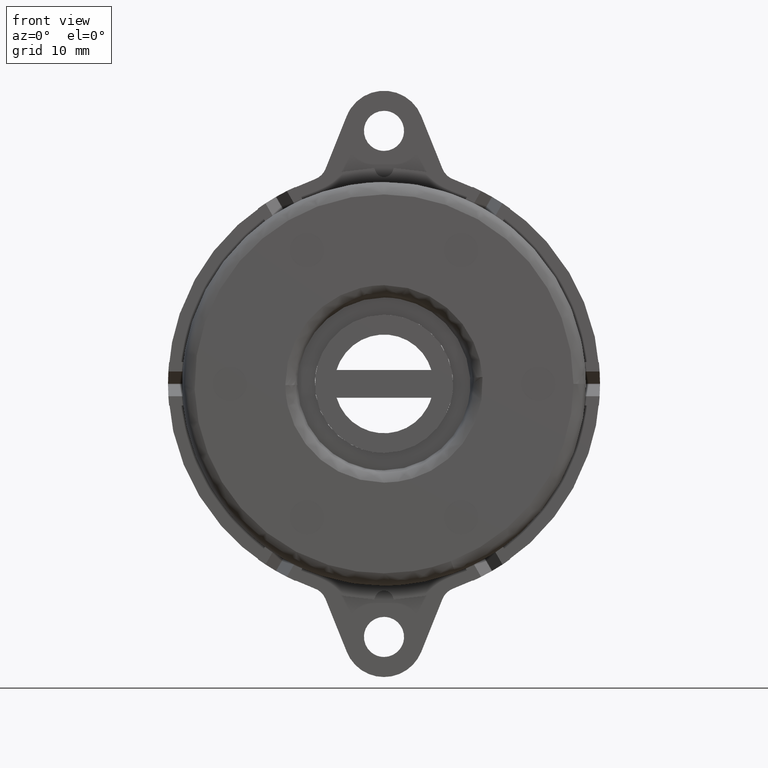
[diagram: clean part render]
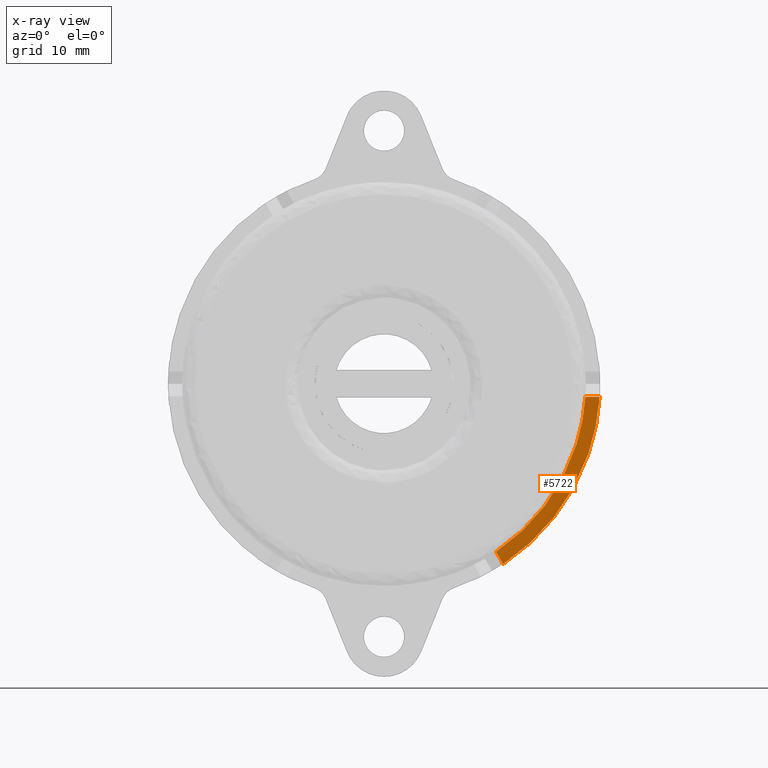
[diagram: x-ray — body ghosted, one internal face saturated and labeled with its STEP entity id]
A machine part, front view, then the same camera in x-ray: the body is ghosted and one INTERNAL B-rep face — a face not visible from any outside direction — is saturated and labeled: STEP entity #5722.
In plain terms, the highlighted face is a freeform B-spline surface patch.
Its self-contained STEP definition (entity closure, byte-faithful):
#3531=CARTESIAN_POINT('',(18.134903418046051,-1.599999999999935,-27.210574110410501));
#3532=VERTEX_POINT('',#3531);
#3538=CARTESIAN_POINT('',(32.632500140197664,-1.600000000000045,-2.100000000000000));
#3539=VERTEX_POINT('',#3538);
#3540=CARTESIAN_POINT('',(18.134903418046051,-1.599999999999935,-27.210574110410501));
#3541=CARTESIAN_POINT('',(31.593798100386543,-1.600000000000045,-18.240687837980964));
#3542=CARTESIAN_POINT('',(32.632500140197671,-1.600000000000045,-2.100000000000025));
#3550=(BOUNDED_CURVE()B_SPLINE_CURVE(2,(#3540,#3541,#3542),.UNSPECIFIED.,.F.,.U.)CURVE()GEOMETRIC_REPRESENTATION_ITEM()QUASI_UNIFORM_CURVE()RATIONAL_B_SPLINE_CURVE((1.0,0.896347804711395,1.0))REPRESENTATION_ITEM(''));
#3551=EDGE_CURVE('',#3532,#3539,#3550,.T.);
#5687=CARTESIAN_POINT('',(17.295641090440881,-1.599999999999965,-0.746041191952895));
#5688=CARTESIAN_POINT('',(35.776205525314957,-1.599999999999965,-0.746041191952895));
#5689=CARTESIAN_POINT('',(17.295641090440881,-1.599999999999965,-30.560237693743421));
#5690=CARTESIAN_POINT('',(35.776205525314957,-1.599999999999965,-30.560237693743421));
#5691=B_SPLINE_SURFACE_WITH_KNOTS('',1,1,((#5687,#5689),(#5688,#5690)),.UNSPECIFIED.,.F.,.F.,.U.,(2,2),(2,2),(0.0,18.480564434874090),(0.0,29.814196501790530),.UNSPECIFIED.);
#5692=CARTESIAN_POINT('',(34.936943197709802,-1.600000000000045,-2.099999999999905));
#5693=VERTEX_POINT('',#5692);
#5694=CARTESIAN_POINT('',(34.936943197709802,-1.600000000000045,-2.099999999999905));
#5695=CARTESIAN_POINT('',(32.632500140197664,-1.600000000000045,-2.100000000000000));
#5696=QUASI_UNIFORM_CURVE('',1,(#5694,#5695),.UNSPECIFIED.,.F.,.U.);
#5697=EDGE_CURVE('',#5693,#3539,#5696,.T.);
#5698=ORIENTED_EDGE('',*,*,#5697,.T.);
#5699=ORIENTED_EDGE('',*,*,#3551,.F.);
#5700=CARTESIAN_POINT('',(19.287124946802201,-1.600000000000045,-29.206280339790599));
#5701=VERTEX_POINT('',#5700);
#5702=CARTESIAN_POINT('',(18.134903418046051,-1.599999999999935,-27.210574110410501));
#5703=CARTESIAN_POINT('',(19.287124946802201,-1.600000000000045,-29.206280339790599));
#5704=QUASI_UNIFORM_CURVE('',1,(#5702,#5703),.UNSPECIFIED.,.F.,.U.);
#5705=EDGE_CURVE('',#3532,#5701,#5704,.T.);
#5706=ORIENTED_EDGE('',*,*,#5705,.T.);
#5707=CARTESIAN_POINT('',(19.287124946802201,-1.600000000000045,-29.206280339790631));
#5708=CARTESIAN_POINT('',(33.887166029352507,-1.600000000000045,-19.564764429120157));
#5709=CARTESIAN_POINT('',(34.936943197709802,-1.600000000000045,-2.099999999999904));
#5717=(BOUNDED_CURVE()B_SPLINE_CURVE(2,(#5707,#5708,#5709),.UNSPECIFIED.,.F.,.U.)CURVE()GEOMETRIC_REPRESENTATION_ITEM()QUASI_UNIFORM_CURVE()RATIONAL_B_SPLINE_CURVE((1.0,0.894465152565445,1.0))REPRESENTATION_ITEM(''));
#5718=EDGE_CURVE('',#5701,#5693,#5717,.T.);
#5719=ORIENTED_EDGE('',*,*,#5718,.T.);
#5720=EDGE_LOOP('',(#5698,#5699,#5706,#5719));
#5721=FACE_OUTER_BOUND('',#5720,.T.);
#5722=ADVANCED_FACE('',(#5721),#5691,.F.);